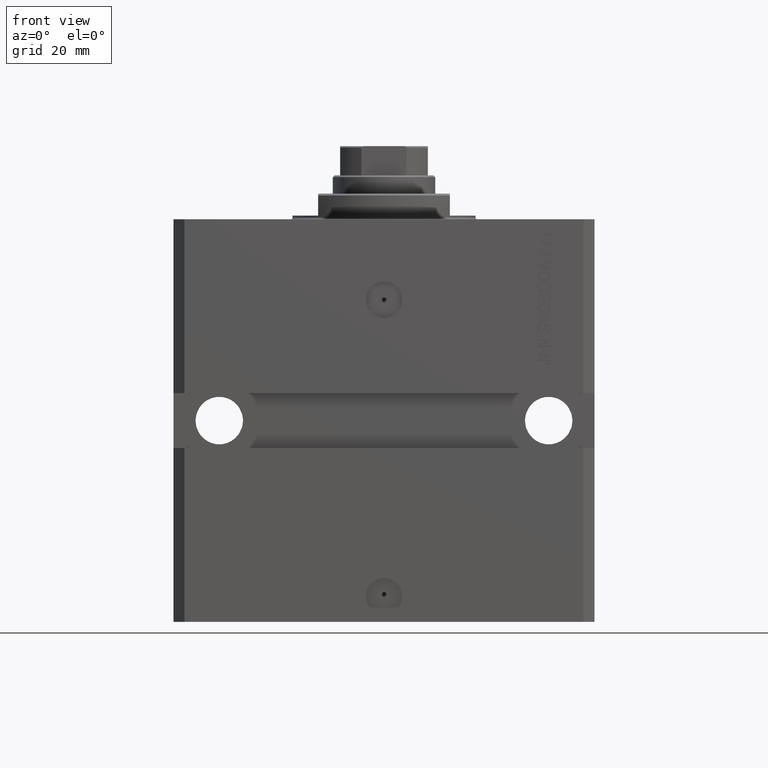
[diagram: clean part render]
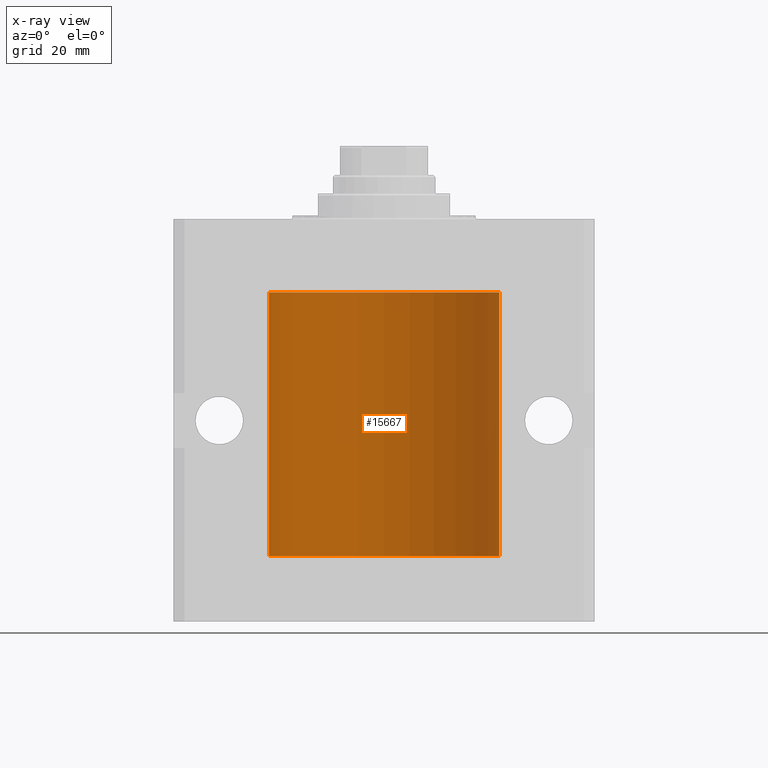
[diagram: x-ray — body ghosted, one internal face saturated and labeled with its STEP entity id]
A machine part, front view, then the same camera in x-ray: the body is ghosted and one INTERNAL B-rep face — a face not visible from any outside direction — is saturated and labeled: STEP entity #15667.
In plain terms, the highlighted cylindrical surface (partial cylindrical patch) has radius 31.5 mm, axis along (0, 0, 1).
Its self-contained STEP definition (entity closure, byte-faithful):
#186 = EDGE_CURVE ( 'NONE', #7512, #6562, #14498, .T. ) ;
#256 = CARTESIAN_POINT ( 'NONE',  ( 31.50000000000000000, -1.286676774952591455E-15, -29.62500000000000000 ) ) ;
#568 = EDGE_CURVE ( 'NONE', #14844, #25672, #42309, .T. ) ;
#1183 = CARTESIAN_POINT ( 'NONE',  ( -31.49528028230855270, 0.5573323339569608015, -88.67349008819323330 ) ) ;
#1336 = CARTESIAN_POINT ( 'NONE',  ( -31.50000000000000000, 3.857637417314162689E-15, -20.00000000000000355 ) ) ;
#1443 = DIRECTION ( 'NONE',  ( -0.000000000000000000, -0.000000000000000000, 1.000000000000000000 ) ) ;
#1677 = CARTESIAN_POINT ( 'NONE',  ( -31.49526081842315151, 0.5587119163470751770, -89.32511513093052713 ) ) ;
#1763 = EDGE_CURVE ( 'NONE', #14844, #9051, #28797, .T. ) ;
#1859 = CARTESIAN_POINT ( 'NONE',  ( 31.49379899281762363, 0.6249999999996151967, -28.83697036533062885 ) ) ;
#2091 = EDGE_CURVE ( 'NONE', #24913, #25672, #6339, .T. ) ;
#2352 = VECTOR ( 'NONE', #33126, 1000.000000000000000 ) ;
#2589 = CARTESIAN_POINT ( 'NONE',  ( 31.50000000000000711, 0.08261130139621915280, -29.62499999999999289 ) ) ;
#2753 = DIRECTION ( 'NONE',  ( -0.000000000000000000, -0.000000000000000000, 1.000000000000000000 ) ) ;
#3140 = FACE_OUTER_BOUND ( 'NONE', #26202, .T. ) ;
#3214 = VECTOR ( 'NONE', #19359, 1000.000000000000000 ) ;
#3221 = CARTESIAN_POINT ( 'NONE',  ( -31.49380014137586414, 0.6249421240571522151, -28.83671479190292075 ) ) ;
#3337 = ORIENTED_EDGE ( 'NONE', *, *, #21657, .T. ) ;
#3478 = CARTESIAN_POINT ( 'NONE',  ( -31.49966591610108679, 0.1636376958180631447, -28.39126189995838700 ) ) ;
#3752 = EDGE_CURVE ( 'NONE', #4156, #9051, #29368, .T. ) ;
#4156 = VERTEX_POINT ( 'NONE', #11237 ) ;
#4601 = EDGE_CURVE ( 'NONE', #22505, #15180, #11900, .T. ) ;
#4668 = CARTESIAN_POINT ( 'NONE',  ( -31.50000000000000000, 2.004021329474678126E-16, -88.37500000000001421 ) ) ;
#5966 = LINE ( 'NONE', #18155, #22369 ) ;
#6245 = CARTESIAN_POINT ( 'NONE',  ( -31.50000000000006395, 3.480981129463732167E-13, -89.62500000000324007 ) ) ;
#6339 = LINE ( 'NONE', #14817, #40418 ) ;
#6562 = VERTEX_POINT ( 'NONE', #25324 ) ;
#6948 = DIRECTION ( 'NONE',  ( 1.000000000000000000, 0.000000000000000000, 0.000000000000000000 ) ) ;
#7070 = CARTESIAN_POINT ( 'NONE',  ( 31.49379899281745665, 0.6250000000082756024, -28.99999999999905853 ) ) ;
#7211 = CARTESIAN_POINT ( 'NONE',  ( -31.50000000000000000, 0.08259258789479792529, -28.37500000000000355 ) ) ;
#7512 = VERTEX_POINT ( 'NONE', #26334 ) ;
#8415 = CARTESIAN_POINT ( 'NONE',  ( 31.49770674525946390, 0.3844410175904657834, -89.49948347834465778 ) ) ;
#9051 = VERTEX_POINT ( 'NONE', #1336 ) ;
#9406 = CARTESIAN_POINT ( 'NONE',  ( -31.50000000000000000, 3.857637417314162689E-15, -92.09999999999999432 ) ) ;
#10433 = CARTESIAN_POINT ( 'NONE',  ( 31.49526225382467359, 0.5586305680866429091, -88.67476160622149450 ) ) ;
#10564 = CARTESIAN_POINT ( 'NONE',  ( 31.50000000000000000, -1.286676774952591455E-15, -29.62500000000000000 ) ) ;
#10808 = CARTESIAN_POINT ( 'NONE',  ( 31.49527883250257432, 0.5574151849338060405, -29.32638608454755058 ) ) ;
#11237 = CARTESIAN_POINT ( 'NONE',  ( 31.50000000000000000, 0.000000000000000000, -20.00000000000000355 ) ) ;
#11662 = CARTESIAN_POINT ( 'NONE',  ( -31.50000000000000000, 3.857637417314162689E-15, -92.09999999999999432 ) ) ;
#11900 = LINE ( 'NONE', #11662, #3214 ) ;
#12115 = ORIENTED_EDGE ( 'NONE', *, *, #4601, .F. ) ;
#12148 = CARTESIAN_POINT ( 'NONE',  ( -31.49380014137585704, 0.6249421240571516600, -88.83671479190292075 ) ) ;
#13153 = CARTESIAN_POINT ( 'NONE',  ( 31.50000000000000000, 0.08261130139621999935, -89.62499999999997158 ) ) ;
#13555 = CARTESIAN_POINT ( 'NONE',  ( 31.49770674525947101, 0.3844410175904570126, -29.49948347834465068 ) ) ;
#13559 = CARTESIAN_POINT ( 'NONE',  ( 31.50000000000006395, 3.442404531757459093E-13, -28.37499999999677058 ) ) ;
#14053 = VERTEX_POINT ( 'NONE', #45588 ) ;
#14118 = VECTOR ( 'NONE', #2753, 1000.000000000000000 ) ;
#14436 = CARTESIAN_POINT ( 'NONE',  ( -31.50000000000006395, 3.480980906124966778E-13, -29.62500000000323297 ) ) ;
#14498 = LINE ( 'NONE', #48305, #2352 ) ;
#14817 = CARTESIAN_POINT ( 'NONE',  ( -31.50000000000000000, 3.857637417314162689E-15, -92.09999999999999432 ) ) ;
#14844 = VERTEX_POINT ( 'NONE', #48847 ) ;
#15180 = VERTEX_POINT ( 'NONE', #6245 ) ;
#15667 = ADVANCED_FACE ( 'NONE', ( #3140 ), #18325, .F. ) ;
#15718 = CARTESIAN_POINT ( 'NONE',  ( -31.50000000000000000, 3.857637417314162689E-15, -92.09999999999999432 ) ) ;
#16124 = CARTESIAN_POINT ( 'NONE',  ( -31.49851563474690508, 0.3150284575672404608, -88.45401791159622462 ) ) ;
#16953 = ORIENTED_EDGE ( 'NONE', *, *, #20824, .T. ) ;
#17288 = CARTESIAN_POINT ( 'NONE',  ( 31.50000000000000000, 0.1631291455194386619, -28.37500000000015277 ) ) ;
#17663 = B_SPLINE_CURVE_WITH_KNOTS ( 'NONE', 3,
 ( #36289, #29318, #10433, #44011, #47982, #29077 ),
 .UNSPECIFIED., .F., .F.,
 ( 4, 2, 4 ),
 ( 0.0009772631991206588969, 0.001465673424414194563, 0.001954083649707730446 ),
 .UNSPECIFIED. ) ;
#18048 = DIRECTION ( 'NONE',  ( -0.000000000000000000, -0.000000000000000000, 1.000000000000000000 ) ) ;
#18155 = CARTESIAN_POINT ( 'NONE',  ( 31.50000000000000000, 0.000000000000000000, -92.09999999999999432 ) ) ;
#18325 = CYLINDRICAL_SURFACE ( 'NONE', #48014, 31.50000000000000000 ) ;
#18552 = CARTESIAN_POINT ( 'NONE',  ( -31.50000000000006395, 3.480980906124966778E-13, -29.62500000000323297 ) ) ;
#18798 = ORIENTED_EDGE ( 'NONE', *, *, #28821, .T. ) ;
#19359 = DIRECTION ( 'NONE',  ( -0.000000000000000000, -0.000000000000000000, 1.000000000000000000 ) ) ;
#19595 = CARTESIAN_POINT ( 'NONE',  ( -31.49379784581975272, 0.6250577973157664946, -89.16284184848846905 ) ) ;
#20097 = CARTESIAN_POINT ( 'NONE',  ( 31.49527883250257432, 0.5574151849338155884, -89.32638608454753637 ) ) ;
#20762 = CARTESIAN_POINT ( 'NONE',  ( 31.49379899281745665, 0.6250000000082756024, -28.99999999999905853 ) ) ;
#20824 = EDGE_CURVE ( 'NONE', #24913, #15180, #31041, .T. ) ;
#21060 = ORIENTED_EDGE ( 'NONE', *, *, #2091, .F. ) ;
#21657 = EDGE_CURVE ( 'NONE', #6562, #22180, #39336, .T. ) ;
#22180 = VERTEX_POINT ( 'NONE', #33451 ) ;
#22369 = VECTOR ( 'NONE', #39799, 1000.000000000000000 ) ;
#22505 = VERTEX_POINT ( 'NONE', #15718 ) ;
#23493 = EDGE_CURVE ( 'NONE', #14053, #47752, #40314, .T. ) ;
#23585 = CARTESIAN_POINT ( 'NONE',  ( 31.49851501686590893, 0.3150934959385818801, -89.54594721883857744 ) ) ;
#24513 = ORIENTED_EDGE ( 'NONE', *, *, #1763, .F. ) ;
#24856 = CARTESIAN_POINT ( 'NONE',  ( 0.000000000000000000, 0.000000000000000000, -20.00000000000000355 ) ) ;
#24913 = VERTEX_POINT ( 'NONE', #38007 ) ;
#25156 = B_SPLINE_CURVE_WITH_KNOTS ( 'NONE', 3,
 ( #10564, #2589, #44890, #25722, #13555, #10808, #25972, #7070 ),
 .UNSPECIFIED., .F., .F.,
 ( 4, 2, 2, 4 ),
 ( 1.824539386392990385E-18, 0.0002443157997801608753, 0.0004886315995603199075, 0.0009772631991206452359 ),
 .UNSPECIFIED. ) ;
#25324 = CARTESIAN_POINT ( 'NONE',  ( 31.50000000000000000, -2.492939093807799249E-15, -89.62500000000000000 ) ) ;
#25356 = CARTESIAN_POINT ( 'NONE',  ( -31.49853548231893541, 0.3253851488062238784, -29.55855470525682094 ) ) ;
#25672 = VERTEX_POINT ( 'NONE', #18552 ) ;
#25703 = DIRECTION ( 'NONE',  ( 0.000000000000000000, 0.000000000000000000, 1.000000000000000000 ) ) ;
#25722 = CARTESIAN_POINT ( 'NONE',  ( 31.49851501686590893, 0.3150934959385772727, -29.54594721883858099 ) ) ;
#25972 = CARTESIAN_POINT ( 'NONE',  ( 31.49379899281760231, 0.6250000000003351763, -29.16310352862698352 ) ) ;
#26202 = EDGE_LOOP ( 'NONE', ( #12115, #27665, #38386, #3337, #38006, #32551, #18798, #47557, #48689, #37133, #24513, #30708, #21060, #16953 ) ) ;
#26334 = CARTESIAN_POINT ( 'NONE',  ( 31.50000000000000000, 0.000000000000000000, -92.09999999999999432 ) ) ;
#27665 = ORIENTED_EDGE ( 'NONE', *, *, #37085, .F. ) ;
#27972 = CARTESIAN_POINT ( 'NONE',  ( 31.50000000000006395, 3.442404531757459093E-13, -28.37499999999677058 ) ) ;
#28561 = AXIS2_PLACEMENT_3D ( 'NONE', #24856, #47731, #6948 ) ;
#28797 = LINE ( 'NONE', #9406, #34839 ) ;
#28821 = EDGE_CURVE ( 'NONE', #47752, #46635, #25156, .T. ) ;
#28874 = CARTESIAN_POINT ( 'NONE',  ( 31.49379899281745665, 0.6250000000082756024, -28.99999999999905853 ) ) ;
#29077 = CARTESIAN_POINT ( 'NONE',  ( 31.50000000000006395, 3.442404755096224483E-13, -88.37499999999675993 ) ) ;
#29318 = CARTESIAN_POINT ( 'NONE',  ( 31.49379899281762363, 0.6249999999996236344, -88.83697036533064306 ) ) ;
#29368 = CIRCLE ( 'NONE', #28561, 31.50000000000000000 ) ;
#30044 = B_SPLINE_CURVE_WITH_KNOTS ( 'NONE', 3,
 ( #20762, #1859, #32439, #39917, #17288, #13559 ),
 .UNSPECIFIED., .F., .F.,
 ( 4, 2, 4 ),
 ( 0.0009772631991206452359, 0.001465673424414174614, 0.001954083649707703992 ),
 .UNSPECIFIED. ) ;
#30708 = ORIENTED_EDGE ( 'NONE', *, *, #568, .T. ) ;
#31041 = B_SPLINE_CURVE_WITH_KNOTS ( 'NONE', 3,
 ( #4668, #31527, #31774, #16124, #38745, #1183, #12148, #19595, #1677, #42240, #46701, #38506 ),
 .UNSPECIFIED., .F., .F.,
 ( 4, 2, 2, 2, 2, 4 ),
 ( 3.060966169700910179E-18, 0.0002442604562134844119, 0.0004885209124269657881, 0.0009770418248538990501, 0.001465562737280832204, 0.001954083649707765141 ),
 .UNSPECIFIED. ) ;
#31527 = CARTESIAN_POINT ( 'NONE',  ( -31.49999999999999289, 0.08259258789479415053, -88.37500000000004263 ) ) ;
#31774 = CARTESIAN_POINT ( 'NONE',  ( -31.49966591610108679, 0.1636376958180629781, -88.39126189995839411 ) ) ;
#32439 = CARTESIAN_POINT ( 'NONE',  ( 31.49526225382467359, 0.5586305680866376910, -28.67476160622149806 ) ) ;
#32551 = ORIENTED_EDGE ( 'NONE', *, *, #23493, .T. ) ;
#32852 = CARTESIAN_POINT ( 'NONE',  ( 31.50000000000000000, 0.000000000000000000, -92.09999999999999432 ) ) ;
#33068 = CARTESIAN_POINT ( 'NONE',  ( -31.49851563474691929, 0.3150284575672404608, -28.45401791159624949 ) ) ;
#33126 = DIRECTION ( 'NONE',  ( -0.000000000000000000, -0.000000000000000000, 1.000000000000000000 ) ) ;
#33451 = CARTESIAN_POINT ( 'NONE',  ( 31.49379899281745665, 0.6250000000082825968, -88.99999999999904787 ) ) ;
#33489 = CARTESIAN_POINT ( 'NONE',  ( 0.000000000000000000, 0.000000000000000000, -92.09999999999999432 ) ) ;
#33579 = CARTESIAN_POINT ( 'NONE',  ( -31.49526081842315151, 0.5587119163470772865, -29.32511513093050937 ) ) ;
#33816 = CARTESIAN_POINT ( 'NONE',  ( -31.49528028230854559, 0.5573323339569596913, -28.67349008819320488 ) ) ;
#34839 = VECTOR ( 'NONE', #1443, 1000.000000000000000 ) ;
#35757 = CARTESIAN_POINT ( 'NONE',  ( 31.49966575203785268, 0.1636755595825563903, -89.60873030821188934 ) ) ;
#35895 = CIRCLE ( 'NONE', #48629, 31.50000000000000000 ) ;
#36289 = CARTESIAN_POINT ( 'NONE',  ( 31.49379899281745665, 0.6250000000082825968, -88.99999999999904787 ) ) ;
#36546 = CARTESIAN_POINT ( 'NONE',  ( -31.49379784581975983, 0.6250577973157599443, -29.16284184848848327 ) ) ;
#36637 = CARTESIAN_POINT ( 'NONE',  ( 0.000000000000000000, 0.000000000000000000, -92.09999999999999432 ) ) ;
#37085 = EDGE_CURVE ( 'NONE', #7512, #22505, #35895, .T. ) ;
#37133 = ORIENTED_EDGE ( 'NONE', *, *, #3752, .T. ) ;
#38006 = ORIENTED_EDGE ( 'NONE', *, *, #47525, .T. ) ;
#38007 = CARTESIAN_POINT ( 'NONE',  ( -31.50000000000000000, 2.004021329474678126E-16, -88.37500000000001421 ) ) ;
#38386 = ORIENTED_EDGE ( 'NONE', *, *, #186, .T. ) ;
#38506 = CARTESIAN_POINT ( 'NONE',  ( -31.50000000000006395, 3.480981129463732167E-13, -89.62500000000324007 ) ) ;
#38641 = VERTEX_POINT ( 'NONE', #27972 ) ;
#38745 = CARTESIAN_POINT ( 'NONE',  ( -31.49770767031178664, 0.3843648832734374854, -88.50046081259652908 ) ) ;
#39263 = EDGE_CURVE ( 'NONE', #46635, #38641, #30044, .T. ) ;
#39336 = B_SPLINE_CURVE_WITH_KNOTS ( 'NONE', 3,
 ( #47211, #13153, #35757, #23585, #8415, #20097, #43235, #39499 ),
 .UNSPECIFIED., .F., .F.,
 ( 4, 2, 2, 4 ),
 ( 2.422664849601941982E-18, 0.0002443157997801665674, 0.0004886315995603306411, 0.0009772631991206588969 ),
 .UNSPECIFIED. ) ;
#39499 = CARTESIAN_POINT ( 'NONE',  ( 31.49379899281745665, 0.6250000000082825968, -88.99999999999904787 ) ) ;
#39799 = DIRECTION ( 'NONE',  ( -0.000000000000000000, -0.000000000000000000, 1.000000000000000000 ) ) ;
#39917 = CARTESIAN_POINT ( 'NONE',  ( 31.49853627283156499, 0.3253078817183363558, -28.44140989403645747 ) ) ;
#40066 = EDGE_CURVE ( 'NONE', #38641, #4156, #5966, .T. ) ;
#40314 = LINE ( 'NONE', #32852, #14118 ) ;
#40418 = VECTOR ( 'NONE', #18048, 1000.000000000000000 ) ;
#40882 = DIRECTION ( 'NONE',  ( 1.000000000000000000, 0.000000000000000000, 0.000000000000000000 ) ) ;
#42240 = CARTESIAN_POINT ( 'NONE',  ( -31.49853548231895672, 0.3253851488062160513, -89.55855470525688133 ) ) ;
#42309 = B_SPLINE_CURVE_WITH_KNOTS ( 'NONE', 3,
 ( #45024, #7211, #3478, #33068, #48000, #33816, #3221, #36546, #33579, #25356, #45262, #14436 ),
 .UNSPECIFIED., .F., .F.,
 ( 4, 2, 2, 2, 2, 4 ),
 ( 5.322949309211407119E-19, 0.0002442604562134704257, 0.0004885209124269403094, 0.0009770418248538795345, 0.001465562737280818977, 0.001954083649707758635 ),
 .UNSPECIFIED. ) ;
#43235 = CARTESIAN_POINT ( 'NONE',  ( 31.49379899281760942, 0.6250000000003405054, -89.16310352862700483 ) ) ;
#44011 = CARTESIAN_POINT ( 'NONE',  ( 31.49853627283156499, 0.3253078817183396310, -88.44140989403643971 ) ) ;
#44890 = CARTESIAN_POINT ( 'NONE',  ( 31.49966575203784558, 0.1636755595825546972, -29.60873030821186802 ) ) ;
#45024 = CARTESIAN_POINT ( 'NONE',  ( -31.50000000000000000, 6.762885151983182724E-15, -28.37500000000000355 ) ) ;
#45186 = DIRECTION ( 'NONE',  ( -0.000000000000000000, -0.000000000000000000, 1.000000000000000000 ) ) ;
#45262 = CARTESIAN_POINT ( 'NONE',  ( -31.50000000000000711, 0.1631661150515227865, -29.62499999999986500 ) ) ;
#45588 = CARTESIAN_POINT ( 'NONE',  ( 31.50000000000006395, 3.442404755096224483E-13, -88.37499999999675993 ) ) ;
#46635 = VERTEX_POINT ( 'NONE', #28874 ) ;
#46701 = CARTESIAN_POINT ( 'NONE',  ( -31.50000000000000000, 0.1631661150515253955, -89.62499999999985789 ) ) ;
#47211 = CARTESIAN_POINT ( 'NONE',  ( 31.50000000000000000, -2.492939093807799249E-15, -89.62500000000000000 ) ) ;
#47525 = EDGE_CURVE ( 'NONE', #22180, #14053, #17663, .T. ) ;
#47557 = ORIENTED_EDGE ( 'NONE', *, *, #39263, .T. ) ;
#47731 = DIRECTION ( 'NONE',  ( 0.000000000000000000, 0.000000000000000000, 1.000000000000000000 ) ) ;
#47752 = VERTEX_POINT ( 'NONE', #256 ) ;
#47982 = CARTESIAN_POINT ( 'NONE',  ( 31.50000000000000000, 0.1631291455194407158, -88.37500000000012790 ) ) ;
#48000 = CARTESIAN_POINT ( 'NONE',  ( -31.49770767031179730, 0.3843648832734374854, -28.50046081259655395 ) ) ;
#48014 = AXIS2_PLACEMENT_3D ( 'NONE', #33489, #45186, #48675 ) ;
#48305 = CARTESIAN_POINT ( 'NONE',  ( 31.50000000000000000, 0.000000000000000000, -92.09999999999999432 ) ) ;
#48629 = AXIS2_PLACEMENT_3D ( 'NONE', #36637, #25703, #40882 ) ;
#48675 = DIRECTION ( 'NONE',  ( 1.000000000000000000, 0.000000000000000000, 0.000000000000000000 ) ) ;
#48689 = ORIENTED_EDGE ( 'NONE', *, *, #40066, .T. ) ;
#48847 = CARTESIAN_POINT ( 'NONE',  ( -31.50000000000000000, 6.762885151983182724E-15, -28.37500000000000355 ) ) ;